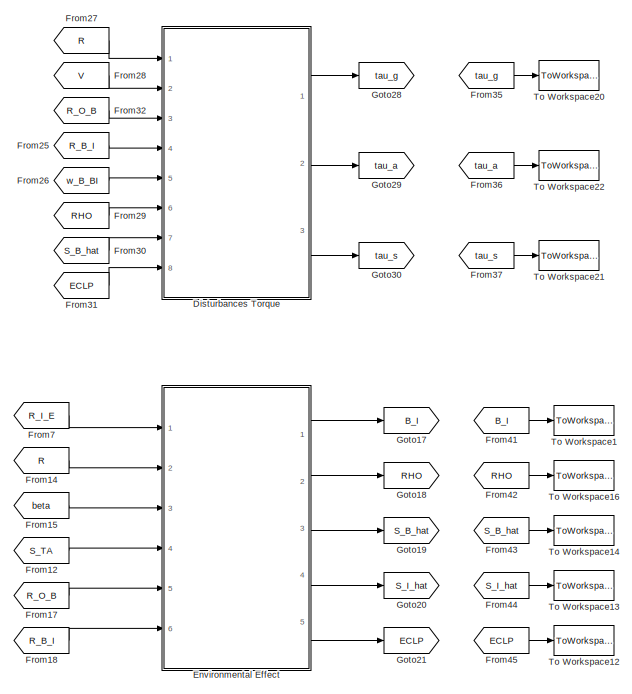
[diagram: root canvas - part 1/2, top right region]
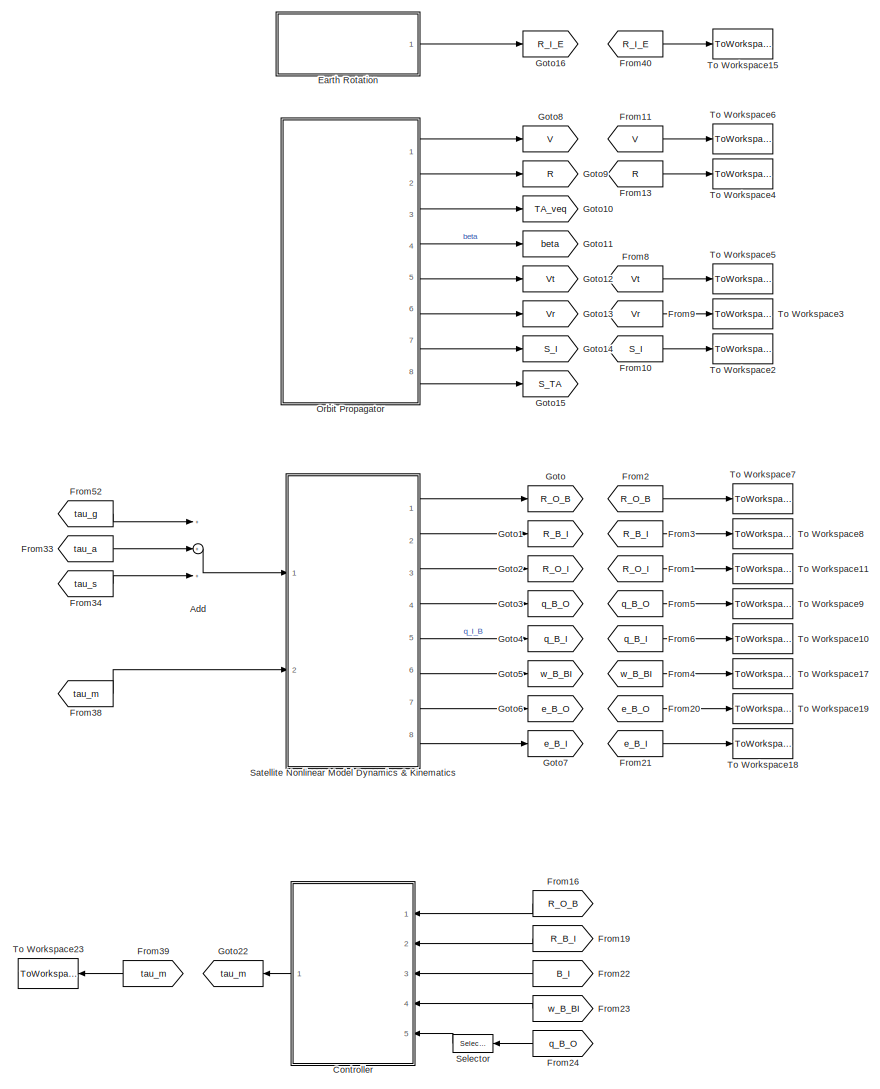
[diagram: root canvas - part 2/2, left side, full height]
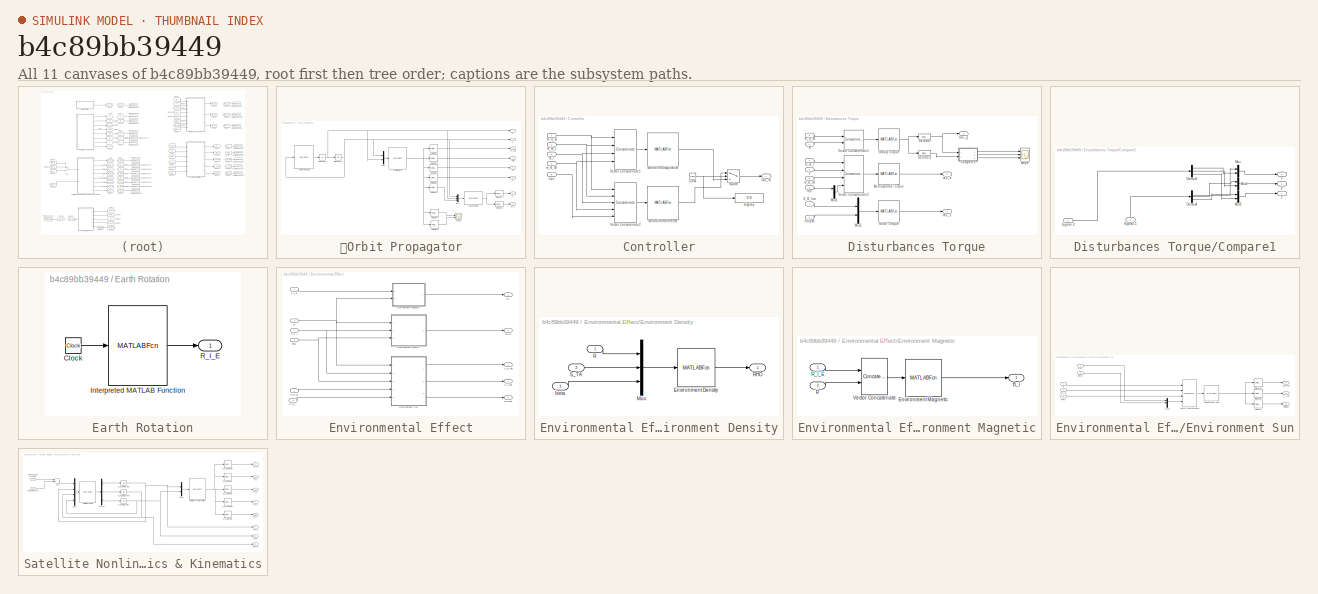
[diagram: thumbnail index - all 11 canvases of the model, root first then tree order]
MODEL slx_b4c89bb39449
KIND model
CONFIG AbsTol = auto
CONFIG EnableMultiTasking = off
CONFIG FixedStep = dt
CONFIG MaxStep = auto
CONFIG MinStep = auto
CONFIG RelTol = 1e-3
CONFIG SampleTimeConstraint = Unconstrained
CONFIG Solver = FixedStepAuto
CONFIG SolverName = FixedStepAuto
CONFIG StartTime = 0.0
CONFIG StopTime = 10.0
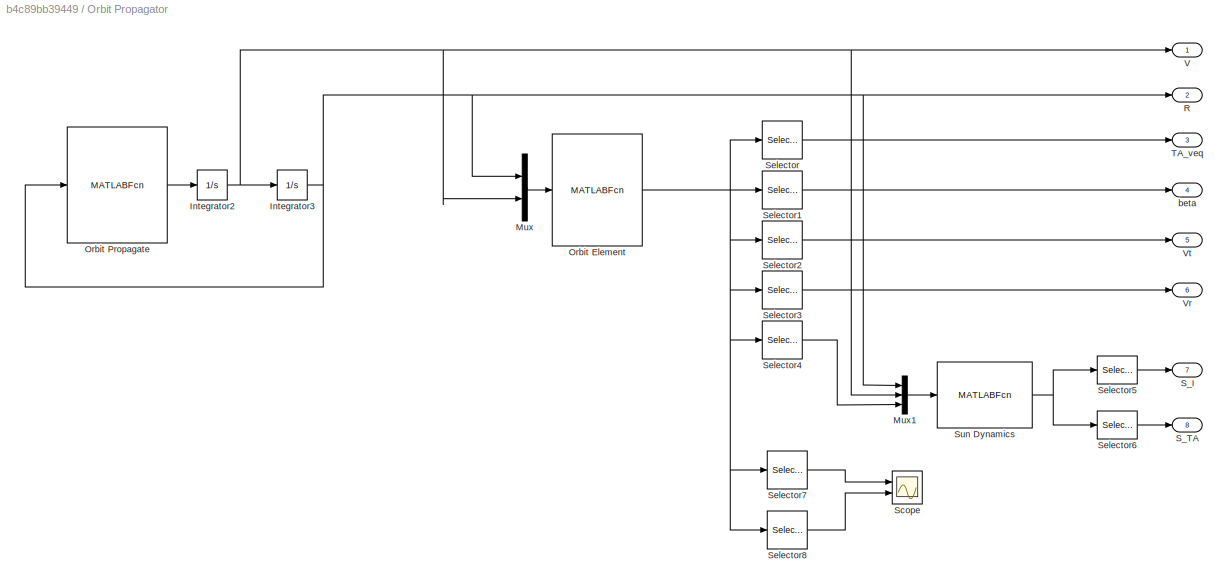
BLOCK [SubSystem] 	Orbit Propagator
  Ports = [0, 8]
  RequestExecContextInheritance = off
  Variant = off
BLOCK [Integrator] 	Orbit Propagator/Integrator2
  InitialCondition = V_0
  Ports = [1, 1]
BLOCK [Integrator] 	Orbit Propagator/Integrator3
  InitialCondition = R_0
  Ports = [1, 1]
BLOCK [Mux] 	Orbit Propagator/Mux
  DisplayOption = bar
  Inputs = 2
  Ports = [2, 1]
BLOCK [Mux] 	Orbit Propagator/Mux1
  DisplayOption = bar
  Inputs = 3
  Ports = [3, 1]
BLOCK [MATLABFcn] 	Orbit Propagator/Orbit Element
  MATLABFcn = orbitElement
  Output1D = off
  OutputDimensions = 11
  Ports = [1, 1]
BLOCK [MATLABFcn] 	Orbit Propagator/Orbit Propagate
  MATLABFcn = orbitPropagate
  Output1D = off
  OutputDimensions = [3,1]
  Ports = [1, 1]
BLOCK [Outport] 	Orbit Propagator/R
  IconDisplay = Port number
  Port = 2
BLOCK [Outport] 	Orbit Propagator/S_I 
  IconDisplay = Port number
  Port = 7
BLOCK [Outport] 	Orbit Propagator/S_TA
  IconDisplay = Port number
  Port = 8
BLOCK [Scope] 	Orbit Propagator/Scope
  NumInputPorts = 2
  Ports = [2]
  ScopeSpecificationString = Simulink.scopes.TimeScopeBlockCfg('CurrentConfiguration', extmgr.ConfigurationSet(extmgr.Configuration('Core','General UI',true),extmgr.Configuration('Core','Source UI',true),extmgr.Configuration('Sources','WiredSimulink',true,'DataLoggingVariableName','ScopeData1'),extmgr.Configuration('Visuals','Time Domain',true,'SerializedDisplays',{struct('MinYLimReal','-1.96348','MaxYLimReal','1.96349','YLab...<+1993ch>
BLOCK [Selector] 	Orbit Propagator/Selector
  IndexOptions = Index vector (dialog)
  Indices = 1
  InputPortWidth = 11
  OutputSizes = 1
  Ports = [1, 1]
BLOCK [Selector] 	Orbit Propagator/Selector1
  IndexOptions = Index vector (dialog)
  Indices = 2
  InputPortWidth = 11
  OutputSizes = 1
  Ports = [1, 1]
BLOCK [Selector] 	Orbit Propagator/Selector2
  IndexOptions = Index vector (dialog)
  Indices = [3:5]
  InputPortWidth = 11
  OutputSizes = 1
  Ports = [1, 1]
BLOCK [Selector] 	Orbit Propagator/Selector3
  IndexOptions = Index vector (dialog)
  Indices = [6:8]
  InputPortWidth = 11
  OutputSizes = 1
  Ports = [1, 1]
BLOCK [Selector] 	Orbit Propagator/Selector4
  IndexOptions = Index vector (dialog)
  Indices = 9
  InputPortWidth = 11
  OutputSizes = 1
  Ports = [1, 1]
BLOCK [Selector] 	Orbit Propagator/Selector5
  IndexOptions = Index vector (dialog),Index vector (dialog)
  Indices = 1:3,1
  InputPortWidth = 4
  NumberOfDimensions = 2
  OutputSizes = 1,1
  Ports = [1, 1]
BLOCK [Selector] 	Orbit Propagator/Selector6
  IndexOptions = Index vector (dialog),Index vector (dialog)
  Indices = 4,1
  InputPortWidth = 4
  NumberOfDimensions = 2
  OutputSizes = 1,1
  Ports = [1, 1]
BLOCK [Selector] 	Orbit Propagator/Selector7
  IndexOptions = Index vector (dialog)
  Indices = 10
  InputPortWidth = 11
  OutputSizes = 1
  Ports = [1, 1]
BLOCK [Selector] 	Orbit Propagator/Selector8
  IndexOptions = Index vector (dialog)
  Indices = 11
  InputPortWidth = 11
  OutputSizes = 1
  Ports = [1, 1]
BLOCK [MATLABFcn] 	Orbit Propagator/Sun Dynamics
  MATLABFcn = sunDynamics
  Output1D = off
  OutputDimensions = [4,1]
  Ports = [1, 1]
BLOCK [Outport] 	Orbit Propagator/TA_veq
  IconDisplay = Port number
  Port = 3
BLOCK [Outport] 	Orbit Propagator/V
  IconDisplay = Port number
BLOCK [Outport] 	Orbit Propagator/Vr
  IconDisplay = Port number
  Port = 6
BLOCK [Outport] 	Orbit Propagator/Vt
  IconDisplay = Port number
  Port = 5
BLOCK [Outport] 	Orbit Propagator/beta
  IconDisplay = Port number
  Port = 4
BLOCK [Sum] Add
  InputSameDT = off
  Inputs = +++
  OutDataTypeStr = Inherit: Inherit via internal rule
  Ports = [3, 1]
  SaturateOnIntegerOverflow = off
BLOCK [SubSystem] Controller
  Ports = [5, 1]
  RequestExecContextInheritance = off
  Variant = off
BLOCK [Inport] Controller/B_I
  IconDisplay = Port number
  Port = 3
BLOCK [Clock] Controller/Clock
BLOCK [Display] Controller/Display
  Decimation = 1
  Ports = [1]
BLOCK [Inport] Controller/R_B_I
  IconDisplay = Port number
  Port = 2
BLOCK [Inport] Controller/R_O_B
  IconDisplay = Port number
BLOCK [Switch] Controller/Switch
  Criteria = u2 > Threshold
  InputSameDT = off
  SaturateOnIntegerOverflow = off
  Threshold = 2*P
BLOCK [Concatenate] Controller/Vector Concatenate1
  ConcatenateDimension = 2
  Mode = Multidimensional array
  NumInputs = 4
  Ports = [4, 1]
BLOCK [Concatenate] Controller/Vector Concatenate2
  ConcatenateDimension = 2
  Mode = Multidimensional array
  NumInputs = 5
  Ports = [5, 1]
BLOCK [MATLABFcn] Controller/controllerDissipitative
  MATLABFcn = controllerDissipative
  Output1D = off
  OutputDimensions = [3,1]
  Ports = [1, 1]
BLOCK [MATLABFcn] Controller/controllerReference
  MATLABFcn = controllerReference
  Output1D = off
  OutputDimensions = [3,1]
  Ports = [1, 1]
BLOCK [Inport] Controller/eps
  IconDisplay = Port number
  Port = 5
BLOCK [Outport] Controller/tau_m
  IconDisplay = Port number
BLOCK [Inport] Controller/w_B_BI
  IconDisplay = Port number
  Port = 4
BLOCK [SubSystem] Disturbances Torque
  Ports = [8, 3]
  RequestExecContextInheritance = off
  Variant = off
BLOCK [MATLABFcn] Disturbances Torque/Aerodynamic Torque
  MATLABFcn = torqueAerodynamic
  Output1D = off
  OutputDimensions = [3,1]
  Ports = [1, 1]
BLOCK [SubSystem] Disturbances Torque/Compare1
  Ports = [2, 3]
  RequestExecContextInheritance = off
  Variant = off
BLOCK [Demux] Disturbances Torque/Compare1/Demux3
  DisplayOption = bar
  Outputs = 3
  Ports = [1, 3]
BLOCK [Demux] Disturbances Torque/Compare1/Demux4
  DisplayOption = bar
  Outputs = 3
  Ports = [1, 3]
BLOCK [Mux] Disturbances Torque/Compare1/Mux
  DisplayOption = bar
  Inputs = 2
  Ports = [2, 1]
BLOCK [Mux] Disturbances Torque/Compare1/Mux1
  DisplayOption = bar
  Inputs = 2
  Ports = [2, 1]
BLOCK [Mux] Disturbances Torque/Compare1/Mux2
  DisplayOption = bar
  Inputs = 2
  Ports = [2, 1]
BLOCK [Inport] Disturbances Torque/Compare1/Signal 1
  IconDisplay = Port number
BLOCK [Inport] Disturbances Torque/Compare1/Signal 2
  IconDisplay = Port number
  Port = 2
BLOCK [Outport] Disturbances Torque/Compare1/x
  IconDisplay = Port number
BLOCK [Outport] Disturbances Torque/Compare1/y
  IconDisplay = Port number
  Port = 2
BLOCK [Outport] Disturbances Torque/Compare1/z
  IconDisplay = Port number
  Port = 3
BLOCK [MATLABFcn] Disturbances Torque/Gravity Torque
  MATLABFcn = torqueGravity
  Output1D = off
  OutputDimensions = [3,2]
  Ports = [1, 1]
BLOCK [Mux] Disturbances Torque/Mux1
  DisplayOption = bar
  Inputs = 3
  Ports = [3, 1]
BLOCK [Mux] Disturbances Torque/Mux2
  DisplayOption = bar
  Inputs = 2
  Ports = [2, 1]
BLOCK [Inport] Disturbances Torque/R
  IconDisplay = Port number
BLOCK [Inport] Disturbances Torque/R_B_I
  IconDisplay = Port number
  Port = 4
BLOCK [Inport] Disturbances Torque/R_O_B
  IconDisplay = Port number
  Port = 3
BLOCK [Inport] Disturbances Torque/S_B_hat
  IconDisplay = Port number
  Port = 7
BLOCK [Selector] Disturbances Torque/Selector
  IndexOptions = Index vector (dialog),Index vector (dialog)
  Indices = [1:3],1
  InputPortWidth = 3
  NumberOfDimensions = 2
  OutputSizes = 1,1
  Ports = [1, 1]
BLOCK [Selector] Disturbances Torque/Selector1
  IndexOptions = Index vector (dialog),Index vector (dialog)
  Indices = [1:3],2
  InputPortWidth = 3
  NumberOfDimensions = 2
  OutputSizes = 1,1
  Ports = [1, 1]
BLOCK [MATLABFcn] Disturbances Torque/Solar Torque
  MATLABFcn = torqueSolar
  Output1D = off
  OutputDimensions = [3,1]
  Ports = [1, 1]
BLOCK [Inport] Disturbances Torque/V
  IconDisplay = Port number
  Port = 2
BLOCK [Concatenate] Disturbances Torque/Vector Concatenate1
  ConcatenateDimension = 2
  Mode = Multidimensional array
  Ports = [2, 1]
BLOCK [Concatenate] Disturbances Torque/Vector Concatenate2
  ConcatenateDimension = 2
  Mode = Multidimensional array
  NumInputs = 4
  Ports = [4, 1]
BLOCK [Inport] Disturbances Torque/eclipse
  IconDisplay = Port number
  Port = 8
BLOCK [Inport] Disturbances Torque/rho
  IconDisplay = Port number
  Port = 6
BLOCK [Scope] Disturbances Torque/scope
  NumInputPorts = 3
  Ports = [3]
  ScopeSpecificationString = Simulink.scopes.TimeScopeBlockCfg('CurrentConfiguration', extmgr.ConfigurationSet(extmgr.Configuration('Core','General UI',true),extmgr.Configuration('Core','Source UI',true),extmgr.Configuration('Sources','WiredSimulink',true,'DataLoggingVariableName','ScopeData1'),extmgr.Configuration('Visuals','Time Domain',true,'SerializedDisplays',{struct('MinYLimReal','-0.000000003','MaxYLimReal','0.00000000...<+3101ch>
BLOCK [Outport] Disturbances Torque/tau_a
  IconDisplay = Port number
  Port = 2
BLOCK [Outport] Disturbances Torque/tau_g
  IconDisplay = Port number
BLOCK [Outport] Disturbances Torque/tau_s
  IconDisplay = Port number
  Port = 3
BLOCK [Inport] Disturbances Torque/w_B_BI
  IconDisplay = Port number
  Port = 5
BLOCK [SubSystem] Earth Rotation
  Ports = [0, 1]
  RequestExecContextInheritance = off
  Variant = off
BLOCK [Clock] Earth Rotation/Clock
BLOCK [MATLABFcn] Earth Rotation/Interpreted MATLAB Function
  MATLABFcn = earthDynamics
  Output1D = off
  OutputDimensions = [3,3]
  Ports = [1, 1]
BLOCK [Outport] Earth Rotation/R_I_E
  IconDisplay = Port number
BLOCK [SubSystem] Environmental Effect
  Ports = [6, 5]
  RequestExecContextInheritance = off
  Variant = off
BLOCK [Outport] Environmental Effect/B_I
  IconDisplay = Port number
BLOCK [Outport] Environmental Effect/Eclipse
  IconDisplay = Port number
  Port = 5
BLOCK [SubSystem] Environmental Effect/Environment Density
  Ports = [3, 1]
  RequestExecContextInheritance = off
  Variant = off
BLOCK [MATLABFcn] Environmental Effect/Environment Density/Environment Density
  MATLABFcn = environmentDensity
  Output1D = off
  OutputDimensions = 1
  Ports = [1, 1]
BLOCK [Mux] Environmental Effect/Environment Density/Mux
  DisplayOption = bar
  Inputs = 3
  Ports = [3, 1]
BLOCK [Inport] Environmental Effect/Environment Density/R
  IconDisplay = Port number
BLOCK [Outport] Environmental Effect/Environment Density/RHO
  IconDisplay = Port number
BLOCK [Inport] Environmental Effect/Environment Density/S_TA
  IconDisplay = Port number
  Port = 2
BLOCK [Inport] Environmental Effect/Environment Density/beta
  IconDisplay = Port number
  Port = 3
BLOCK [SubSystem] Environmental Effect/Environment Magnetic
  Ports = [2, 1]
  RequestExecContextInheritance = off
  Variant = off
BLOCK [Outport] Environmental Effect/Environment Magnetic/B_I
  IconDisplay = Port number
BLOCK [MATLABFcn] Environmental Effect/Environment Magnetic/Environment Magnetic
  MATLABFcn = environmentMagnetic
  Output1D = off
  OutputDimensions = [3,1]
  Ports = [1, 1]
BLOCK [Inport] Environmental Effect/Environment Magnetic/R
  IconDisplay = Port number
  Port = 2
BLOCK [Inport] Environmental Effect/Environment Magnetic/R_I_E
  IconDisplay = Port number
BLOCK [Concatenate] Environmental Effect/Environment Magnetic/Vector Concatenate
  ConcatenateDimension = 2
  Mode = Multidimensional array
  Ports = [2, 1]
BLOCK [SubSystem] Environmental Effect/Environment Sun
  Ports = [5, 3]
  RequestExecContextInheritance = off
  Variant = off
BLOCK [Outport] Environmental Effect/Environment Sun/Eclipse
  IconDisplay = Port number
  Port = 3
BLOCK [MATLABFcn] Environmental Effect/Environment Sun/Environment Sun
  MATLABFcn = environmentSun
  Output1D = off
  OutputDimensions = [3,3]
  Ports = [1, 1]
BLOCK [Mux] Environmental Effect/Environment Sun/Mux1
  DisplayOption = bar
  Inputs = 3
  Ports = [3, 1]
BLOCK [Inport] Environmental Effect/Environment Sun/R
  IconDisplay = Port number
BLOCK [Inport] Environmental Effect/Environment Sun/R_B_I
  IconDisplay = Port number
  Port = 5
BLOCK [Inport] Environmental Effect/Environment Sun/R_O_B
  IconDisplay = Port number
  Port = 4
BLOCK [Outport] Environmental Effect/Environment Sun/S_B_hat
  IconDisplay = Port number
BLOCK [Outport] Environmental Effect/Environment Sun/S_I_hat
  IconDisplay = Port number
  Port = 2
BLOCK [Inport] Environmental Effect/Environment Sun/S_TA
  IconDisplay = Port number
  Port = 2
BLOCK [Selector] Environmental Effect/Environment Sun/Selector
  IndexOptions = Index vector (dialog),Index vector (dialog)
  Indices = 3,3
  InputPortWidth = 3
  NumberOfDimensions = 2
  OutputSizes = 1,1
  Ports = [1, 1]
BLOCK [Selector] Environmental Effect/Environment Sun/Selector1
  IndexOptions = Index vector (dialog),Index vector (dialog)
  Indices = [1:3],1
  InputPortWidth = 3
  NumberOfDimensions = 2
  OutputSizes = 1,1
  Ports = [1, 1]
BLOCK [Selector] Environmental Effect/Environment Sun/Selector2
  IndexOptions = Index vector (dialog),Index vector (dialog)
  Indices = [1:3],2
  InputPortWidth = 3
  NumberOfDimensions = 2
  OutputSizes = 1,1
  Ports = [1, 1]
BLOCK [Concatenate] Environmental Effect/Environment Sun/Vector Concatenate1
  ConcatenateDimension = 2
  Mode = Multidimensional array
  NumInputs = 4
  Ports = [4, 1]
BLOCK [Inport] Environmental Effect/Environment Sun/beta
  IconDisplay = Port number
  Port = 3
BLOCK [Inport] Environmental Effect/R
  IconDisplay = Port number
  Port = 2
BLOCK [Outport] Environmental Effect/RHO
  IconDisplay = Port number
  Port = 2
BLOCK [Inport] Environmental Effect/R_B_I
  IconDisplay = Port number
  Port = 6
BLOCK [Inport] Environmental Effect/R_I_E
  IconDisplay = Port number
BLOCK [Inport] Environmental Effect/R_O_B
  IconDisplay = Port number
  Port = 5
BLOCK [Outport] Environmental Effect/S_B_hat
  IconDisplay = Port number
  Port = 3
BLOCK [Outport] Environmental Effect/S_I_hat
  IconDisplay = Port number
  Port = 4
BLOCK [Inport] Environmental Effect/S_TA
  IconDisplay = Port number
  Port = 4
BLOCK [Inport] Environmental Effect/beta
  IconDisplay = Port number
  Port = 3
BLOCK [From] From1
  GotoTag = R_O_I
BLOCK [From] From10
  GotoTag = S_I
BLOCK [From] From11
  GotoTag = V
BLOCK [From] From12
  GotoTag = S_TA
BLOCK [From] From13
  GotoTag = R
BLOCK [From] From14
  GotoTag = R
BLOCK [From] From15
  GotoTag = beta
BLOCK [From] From16
  GotoTag = R_O_B
BLOCK [From] From17
  GotoTag = R_O_B
BLOCK [From] From18
  GotoTag = R_B_I
BLOCK [From] From19
  GotoTag = R_B_I
BLOCK [From] From2
  GotoTag = R_O_B
BLOCK [From] From20
  GotoTag = e_B_O
BLOCK [From] From21
  GotoTag = e_B_I
BLOCK [From] From22
  GotoTag = B_I
BLOCK [From] From23
  GotoTag = w_B_BI
BLOCK [From] From24
  GotoTag = q_B_O
BLOCK [From] From25
  GotoTag = R_B_I
BLOCK [From] From26
  GotoTag = w_B_BI
BLOCK [From] From27
  GotoTag = R
BLOCK [From] From28
  GotoTag = V
BLOCK [From] From29
  GotoTag = RHO
BLOCK [From] From3
  GotoTag = R_B_I
BLOCK [From] From30
  GotoTag = S_B_hat
BLOCK [From] From31
  GotoTag = ECLP
BLOCK [From] From32
  GotoTag = R_O_B
BLOCK [From] From33
  GotoTag = tau_a
BLOCK [From] From34
  GotoTag = tau_s
BLOCK [From] From35
  GotoTag = tau_g
BLOCK [From] From36
  GotoTag = tau_a
BLOCK [From] From37
  GotoTag = tau_s
BLOCK [From] From38
  GotoTag = tau_m
BLOCK [From] From39
  GotoTag = tau_m
BLOCK [From] From4
  GotoTag = w_B_BI
BLOCK [From] From40
  GotoTag = R_I_E
BLOCK [From] From41
  GotoTag = B_I
BLOCK [From] From42
  GotoTag = RHO
BLOCK [From] From43
  GotoTag = S_B_hat
BLOCK [From] From44
  GotoTag = S_I_hat
BLOCK [From] From45
  GotoTag = ECLP
BLOCK [From] From5
  GotoTag = q_B_O
BLOCK [From] From52
  GotoTag = tau_g
BLOCK [From] From6
  GotoTag = q_B_I
BLOCK [From] From7
  GotoTag = R_I_E
BLOCK [From] From8
  GotoTag = Vt
BLOCK [From] From9
  GotoTag = Vr
BLOCK [Goto] Goto
  GotoTag = R_O_B
BLOCK [Goto] Goto1
  GotoTag = R_B_I
BLOCK [Goto] Goto10
  GotoTag = TA_veq
BLOCK [Goto] Goto11
  GotoTag = beta
BLOCK [Goto] Goto12
  GotoTag = Vt
BLOCK [Goto] Goto13
  GotoTag = Vr
BLOCK [Goto] Goto14
  GotoTag = S_I
BLOCK [Goto] Goto15
  GotoTag = S_TA
BLOCK [Goto] Goto16
  GotoTag = R_I_E
BLOCK [Goto] Goto17
  GotoTag = B_I
BLOCK [Goto] Goto18
  GotoTag = RHO
BLOCK [Goto] Goto19
  GotoTag = S_B_hat
BLOCK [Goto] Goto2
  GotoTag = R_O_I
BLOCK [Goto] Goto20
  GotoTag = S_I_hat
BLOCK [Goto] Goto21
  GotoTag = ECLP
BLOCK [Goto] Goto22
  GotoTag = tau_m
BLOCK [Goto] Goto28
  GotoTag = tau_g
BLOCK [Goto] Goto29
  GotoTag = tau_a
BLOCK [Goto] Goto3
  GotoTag = q_B_O
BLOCK [Goto] Goto30
  GotoTag = tau_s
BLOCK [Goto] Goto4
  GotoTag = q_B_I
BLOCK [Goto] Goto5
  GotoTag = w_B_BI
BLOCK [Goto] Goto6
  GotoTag = e_B_O
BLOCK [Goto] Goto7
  GotoTag = e_B_I
BLOCK [Goto] Goto8
  GotoTag = V
BLOCK [Goto] Goto9
  GotoTag = R
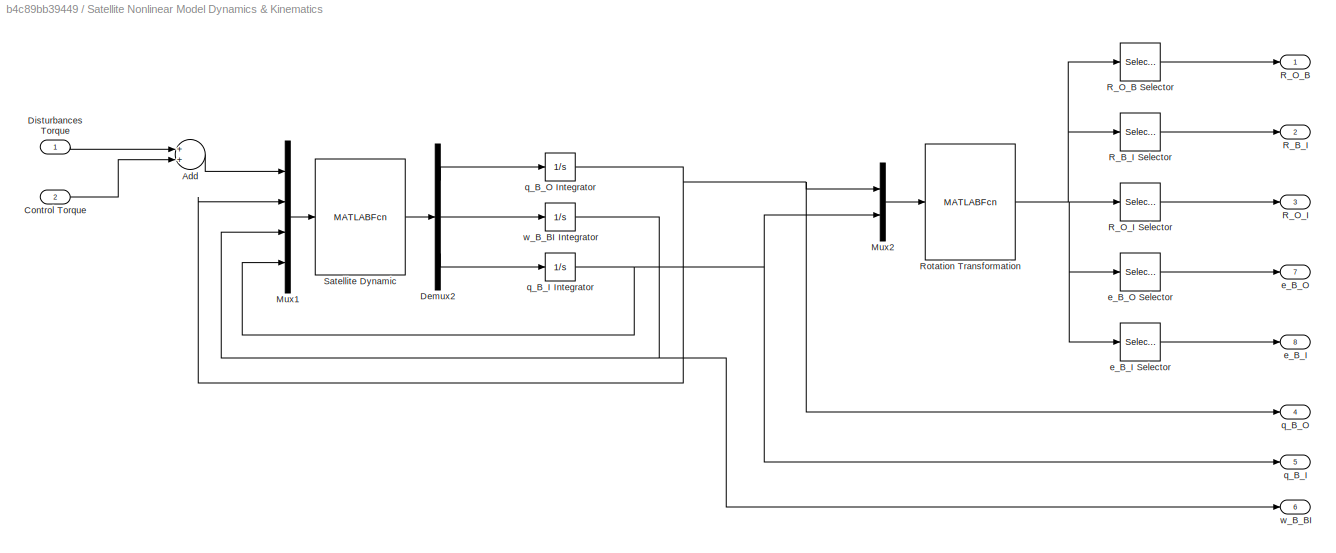
BLOCK [SubSystem] Satellite Nonlinear Model Dynamics & Kinematics
  Ports = [2, 8]
  RequestExecContextInheritance = off
  Variant = off
BLOCK [Integrator] Satellite Nonlinear Model Dynamics & Kinematics/ w_B_BI Integrator
  InitialCondition = w_B_BI_0
  Ports = [1, 1]
BLOCK [Sum] Satellite Nonlinear Model Dynamics & Kinematics/Add
  InputSameDT = off
  OutDataTypeStr = Inherit: Inherit via internal rule
  Ports = [2, 1]
  SaturateOnIntegerOverflow = off
BLOCK [Inport] Satellite Nonlinear Model Dynamics & Kinematics/Control Torque
  IconDisplay = Port number
  Port = 2
BLOCK [Demux] Satellite Nonlinear Model Dynamics & Kinematics/Demux2
  DisplayOption = bar
  Outputs = [4 3 4]
  Ports = [1, 3]
BLOCK [Inport] Satellite Nonlinear Model Dynamics & Kinematics/Disturbances Torque
  IconDisplay = Port number
BLOCK [Mux] Satellite Nonlinear Model Dynamics & Kinematics/Mux1
  DisplayOption = bar
  Inputs = [3 4 3 4]
  Ports = [4, 1]
BLOCK [Mux] Satellite Nonlinear Model Dynamics & Kinematics/Mux2
  DisplayOption = bar
  Inputs = [4 4]
  Ports = [2, 1]
BLOCK [Outport] Satellite Nonlinear Model Dynamics & Kinematics/R_B_I
  IconDisplay = Port number
  Port = 2
BLOCK [Selector] Satellite Nonlinear Model Dynamics & Kinematics/R_B_I Selector
  IndexOptions = Index vector (dialog),Index vector (dialog)
  Indices = [1:3],[4:6]
  InputPortWidth = 3
  NumberOfDimensions = 2
  OutputSizes = 1,1
  Ports = [1, 1]
BLOCK [Outport] Satellite Nonlinear Model Dynamics & Kinematics/R_O_B
  IconDisplay = Port number
BLOCK [Selector] Satellite Nonlinear Model Dynamics & Kinematics/R_O_B Selector
  IndexOptions = Index vector (dialog),Index vector (dialog)
  Indices = [1:3],[1:3]
  InputPortWidth = 3
  NumberOfDimensions = 2
  OutputSizes = 1,1
  Ports = [1, 1]
BLOCK [Outport] Satellite Nonlinear Model Dynamics & Kinematics/R_O_I
  IconDisplay = Port number
  Port = 3
BLOCK [Selector] Satellite Nonlinear Model Dynamics & Kinematics/R_O_I Selector
  IndexOptions = Index vector (dialog),Index vector (dialog)
  Indices = [1:3],[7:9]
  InputPortWidth = 3
  NumberOfDimensions = 2
  OutputSizes = 1,1
  Ports = [1, 1]
BLOCK [MATLABFcn] Satellite Nonlinear Model Dynamics & Kinematics/Rotation Transformation
  MATLABFcn = rotation_quaternion
  Output1D = off
  OutputDimensions = [3,11]
  Ports = [1, 1]
BLOCK [MATLABFcn] Satellite Nonlinear Model Dynamics & Kinematics/Satellite Dynamic
  MATLABFcn = satellite_dynamics
  Output1D = off
  OutputDimensions = [11,1]
  Ports = [1, 1]
BLOCK [Outport] Satellite Nonlinear Model Dynamics & Kinematics/e_B_I
  IconDisplay = Port number
  Port = 8
BLOCK [Selector] Satellite Nonlinear Model Dynamics & Kinematics/e_B_I Selector
  IndexOptions = Index vector (dialog),Index vector (dialog)
  Indices = [1:3],11
  InputPortWidth = 3
  NumberOfDimensions = 2
  OutputSizes = 1,1
  Ports = [1, 1]
BLOCK [Outport] Satellite Nonlinear Model Dynamics & Kinematics/e_B_O
  IconDisplay = Port number
  Port = 7
BLOCK [Selector] Satellite Nonlinear Model Dynamics & Kinematics/e_B_O Selector
  IndexOptions = Index vector (dialog),Index vector (dialog)
  Indices = [1:3],10
  InputPortWidth = 3
  NumberOfDimensions = 2
  OutputSizes = 1,1
  Ports = [1, 1]
BLOCK [Outport] Satellite Nonlinear Model Dynamics & Kinematics/q_B_I
  IconDisplay = Port number
  Port = 5
BLOCK [Integrator] Satellite Nonlinear Model Dynamics & Kinematics/q_B_I Integrator
  InitialCondition = q_B_I_0
  Ports = [1, 1]
BLOCK [Outport] Satellite Nonlinear Model Dynamics & Kinematics/q_B_O
  IconDisplay = Port number
  Port = 4
BLOCK [Integrator] Satellite Nonlinear Model Dynamics & Kinematics/q_B_O Integrator
  InitialCondition = q_B_O_0
  Ports = [1, 1]
BLOCK [Outport] Satellite Nonlinear Model Dynamics & Kinematics/w_B_BI
  IconDisplay = Port number
  Port = 6
BLOCK [Selector] Selector
  IndexOptions = Index vector (dialog),Index vector (dialog)
  Indices = [2:4],1
  InputPortWidth = 3
  NumberOfDimensions = 2
  OutputSizes = 1,1
  Ports = [1, 1]
BLOCK [ToWorkspace] To Workspace1
  FixptAsFi = on
  MaxDataPoints = inf
  Ports = [1]
  SampleTime = -1
  Save2DSignal = 3-D array (concatenate along third dimension)
  VariableName = B_I
BLOCK [ToWorkspace] To Workspace10
  FixptAsFi = on
  MaxDataPoints = inf
  Ports = [1]
  SampleTime = -1
  Save2DSignal = 3-D array (concatenate along third dimension)
  VariableName = q_B_I
BLOCK [ToWorkspace] To Workspace11
  FixptAsFi = on
  MaxDataPoints = inf
  Ports = [1]
  SampleTime = -1
  Save2DSignal = 3-D array (concatenate along third dimension)
  VariableName = R_O_I
BLOCK [ToWorkspace] To Workspace12
  FixptAsFi = on
  MaxDataPoints = inf
  Ports = [1]
  SampleTime = -1
  Save2DSignal = 2-D array (concatenate along first dimension)
  VariableName = ECLIPSE
BLOCK [ToWorkspace] To Workspace13
  FixptAsFi = on
  MaxDataPoints = inf
  Ports = [1]
  SampleTime = -1
  Save2DSignal = 3-D array (concatenate along third dimension)
  VariableName = S_I_hat
BLOCK [ToWorkspace] To Workspace14
  FixptAsFi = on
  MaxDataPoints = inf
  Ports = [1]
  SampleTime = -1
  Save2DSignal = 3-D array (concatenate along third dimension)
  VariableName = S_B_hat
BLOCK [ToWorkspace] To Workspace15
  FixptAsFi = on
  MaxDataPoints = inf
  Ports = [1]
  SampleTime = -1
  Save2DSignal = 3-D array (concatenate along third dimension)
  VariableName = R_I_E
BLOCK [ToWorkspace] To Workspace16
  FixptAsFi = on
  MaxDataPoints = inf
  Ports = [1]
  SampleTime = -1
  Save2DSignal = 2-D array (concatenate along first dimension)
  VariableName = RHO
BLOCK [ToWorkspace] To Workspace17
  FixptAsFi = on
  MaxDataPoints = inf
  Ports = [1]
  SampleTime = -1
  Save2DSignal = 3-D array (concatenate along third dimension)
  VariableName = w_B_BI
BLOCK [ToWorkspace] To Workspace18
  FixptAsFi = on
  MaxDataPoints = inf
  Ports = [1]
  SampleTime = -1
  Save2DSignal = 3-D array (concatenate along third dimension)
  VariableName = e_B_I
BLOCK [ToWorkspace] To Workspace19
  FixptAsFi = on
  MaxDataPoints = inf
  Ports = [1]
  SampleTime = -1
  Save2DSignal = 3-D array (concatenate along third dimension)
  VariableName = e_B_O
BLOCK [ToWorkspace] To Workspace2
  FixptAsFi = on
  MaxDataPoints = inf
  Ports = [1]
  SampleTime = -1
  Save2DSignal = 3-D array (concatenate along third dimension)
  VariableName = S_I
BLOCK [ToWorkspace] To Workspace20
  FixptAsFi = on
  MaxDataPoints = inf
  Ports = [1]
  SampleTime = -1
  Save2DSignal = 3-D array (concatenate along third dimension)
  VariableName = tau_g
BLOCK [ToWorkspace] To Workspace21
  FixptAsFi = on
  MaxDataPoints = inf
  Ports = [1]
  SampleTime = -1
  Save2DSignal = 3-D array (concatenate along third dimension)
  VariableName = tau_s
BLOCK [ToWorkspace] To Workspace22
  FixptAsFi = on
  MaxDataPoints = inf
  Ports = [1]
  SampleTime = -1
  Save2DSignal = 2-D array (concatenate along first dimension)
  VariableName = tau_a
BLOCK [ToWorkspace] To Workspace23
  FixptAsFi = on
  MaxDataPoints = inf
  Ports = [1]
  SampleTime = -1
  Save2DSignal = 3-D array (concatenate along third dimension)
  VariableName = tau_m
BLOCK [ToWorkspace] To Workspace3
  FixptAsFi = on
  MaxDataPoints = inf
  Ports = [1]
  SampleTime = -1
  Save2DSignal = 3-D array (concatenate along third dimension)
  VariableName = Vr
BLOCK [ToWorkspace] To Workspace4
  FixptAsFi = on
  MaxDataPoints = inf
  Ports = [1]
  SampleTime = -1
  Save2DSignal = 3-D array (concatenate along third dimension)
  VariableName = R
BLOCK [ToWorkspace] To Workspace5
  FixptAsFi = on
  MaxDataPoints = inf
  Ports = [1]
  SampleTime = -1
  Save2DSignal = 3-D array (concatenate along third dimension)
  VariableName = Vt
BLOCK [ToWorkspace] To Workspace6
  FixptAsFi = on
  MaxDataPoints = inf
  Ports = [1]
  SampleTime = -1
  Save2DSignal = 3-D array (concatenate along third dimension)
  VariableName = V
BLOCK [ToWorkspace] To Workspace7
  FixptAsFi = on
  MaxDataPoints = inf
  Ports = [1]
  SampleTime = -1
  Save2DSignal = 3-D array (concatenate along third dimension)
  VariableName = R_O_B
BLOCK [ToWorkspace] To Workspace8
  FixptAsFi = on
  MaxDataPoints = inf
  Ports = [1]
  SampleTime = -1
  Save2DSignal = 3-D array (concatenate along third dimension)
  VariableName = R_B_I
BLOCK [ToWorkspace] To Workspace9
  FixptAsFi = on
  MaxDataPoints = inf
  Ports = [1]
  SampleTime = -1
  Save2DSignal = 3-D array (concatenate along third dimension)
  VariableName = q_B_O
NET 	Orbit Propagator/Integrator2:1 -> 	Orbit Propagator/Integrator3:1, 	Orbit Propagator/Mux1:2, 	Orbit Propagator/Mux:2, 	Orbit Propagator/V:1
NET 	Orbit Propagator/Integrator3:1 -> 	Orbit Propagator/Mux1:1, 	Orbit Propagator/Mux:1, 	Orbit Propagator/Orbit Propagate:1, 	Orbit Propagator/R:1
LINE 	Orbit Propagator/Mux1:1 -> 	Orbit Propagator/Sun Dynamics:1
LINE 	Orbit Propagator/Mux:1 -> 	Orbit Propagator/Orbit Element:1
NET 	Orbit Propagator/Orbit Element:1 -> 	Orbit Propagator/Selector1:1, 	Orbit Propagator/Selector2:1, 	Orbit Propagator/Selector3:1, 	Orbit Propagator/Selector4:1, 	Orbit Propagator/Selector7:1, 	Orbit Propagator/Selector8:1, 	Orbit Propagator/Selector:1
LINE 	Orbit Propagator/Orbit Propagate:1 -> 	Orbit Propagator/Integrator2:1
LINE 	Orbit Propagator/Selector1:1 -> 	Orbit Propagator/beta:1
LINE 	Orbit Propagator/Selector2:1 -> 	Orbit Propagator/Vt:1
LINE 	Orbit Propagator/Selector3:1 -> 	Orbit Propagator/Vr:1
LINE 	Orbit Propagator/Selector4:1 -> 	Orbit Propagator/Mux1:3
LINE 	Orbit Propagator/Selector5:1 -> 	Orbit Propagator/S_I :1
LINE 	Orbit Propagator/Selector6:1 -> 	Orbit Propagator/S_TA:1
LINE 	Orbit Propagator/Selector7:1 -> 	Orbit Propagator/Scope:1
LINE 	Orbit Propagator/Selector8:1 -> 	Orbit Propagator/Scope:2
LINE 	Orbit Propagator/Selector:1 -> 	Orbit Propagator/TA_veq:1
NET 	Orbit Propagator/Sun Dynamics:1 -> 	Orbit Propagator/Selector5:1, 	Orbit Propagator/Selector6:1
LINE 	Orbit Propagator:1 -> Goto8:1
LINE 	Orbit Propagator:2 -> Goto9:1
LINE 	Orbit Propagator:3 -> Goto10:1
LINE 	Orbit Propagator:4 -> Goto11:1
LINE 	Orbit Propagator:5 -> Goto12:1
LINE 	Orbit Propagator:6 -> Goto13:1
LINE 	Orbit Propagator:7 -> Goto14:1
LINE 	Orbit Propagator:8 -> Goto15:1
LINE Add:1 -> Satellite Nonlinear Model Dynamics & Kinematics:1
NET Controller/B_I:1 -> Controller/Vector Concatenate1:3, Controller/Vector Concatenate2:3
NET Controller/Clock:1 -> Controller/Display:1, Controller/Switch:2
NET Controller/R_B_I:1 -> Controller/Vector Concatenate1:2, Controller/Vector Concatenate2:2
NET Controller/R_O_B:1 -> Controller/Vector Concatenate1:1, Controller/Vector Concatenate2:1
LINE Controller/Switch:1 -> Controller/tau_m:1
LINE Controller/Vector Concatenate1:1 -> Controller/controllerDissipitative:1
LINE Controller/Vector Concatenate2:1 -> Controller/controllerReference:1
LINE Controller/controllerDissipitative:1 -> Controller/Switch:3
LINE Controller/controllerReference:1 -> Controller/Switch:1
LINE Controller/eps:1 -> Controller/Vector Concatenate2:5
NET Controller/w_B_BI:1 -> Controller/Vector Concatenate1:4, Controller/Vector Concatenate2:4
LINE Controller:1 -> Goto22:1
LINE Disturbances Torque/Aerodynamic Torque:1 -> Disturbances Torque/tau_a:1
LINE Disturbances Torque/Compare1/Demux3:1 -> Disturbances Torque/Compare1/Mux:2
LINE Disturbances Torque/Compare1/Demux3:2 -> Disturbances Torque/Compare1/Mux1:2
LINE Disturbances Torque/Compare1/Demux3:3 -> Disturbances Torque/Compare1/Mux2:2
LINE Disturbances Torque/Compare1/Demux4:1 -> Disturbances Torque/Compare1/Mux:1
LINE Disturbances Torque/Compare1/Demux4:2 -> Disturbances Torque/Compare1/Mux1:1
LINE Disturbances Torque/Compare1/Demux4:3 -> Disturbances Torque/Compare1/Mux2:1
LINE Disturbances Torque/Compare1/Mux1:1 -> Disturbances Torque/Compare1/y:1
LINE Disturbances Torque/Compare1/Mux2:1 -> Disturbances Torque/Compare1/z:1
LINE Disturbances Torque/Compare1/Mux:1 -> Disturbances Torque/Compare1/x:1
LINE Disturbances Torque/Compare1/Signal 1:1 -> Disturbances Torque/Compare1/Demux4:1
LINE Disturbances Torque/Compare1/Signal 2:1 -> Disturbances Torque/Compare1/Demux3:1
LINE Disturbances Torque/Compare1:1 -> Disturbances Torque/scope:1
LINE Disturbances Torque/Compare1:2 -> Disturbances Torque/scope:2
LINE Disturbances Torque/Compare1:3 -> Disturbances Torque/scope:3
NET Disturbances Torque/Gravity Torque:1 -> Disturbances Torque/Selector1:1, Disturbances Torque/Selector:1
LINE Disturbances Torque/Mux1:1 -> Disturbances Torque/Vector Concatenate2:4
LINE Disturbances Torque/Mux2:1 -> Disturbances Torque/Solar Torque:1
LINE Disturbances Torque/R:1 -> Disturbances Torque/Vector Concatenate1:2
LINE Disturbances Torque/R_B_I:1 -> Disturbances Torque/Vector Concatenate2:1
LINE Disturbances Torque/R_O_B:1 -> Disturbances Torque/Vector Concatenate1:1
LINE Disturbances Torque/S_B_hat:1 -> Disturbances Torque/Mux2:1
LINE Disturbances Torque/Selector1:1 -> Disturbances Torque/Compare1:2
NET Disturbances Torque/Selector:1 -> Disturbances Torque/Compare1:1, Disturbances Torque/tau_g:1
LINE Disturbances Torque/Solar Torque:1 -> Disturbances Torque/tau_s:1
LINE Disturbances Torque/V:1 -> Disturbances Torque/Vector Concatenate2:2
LINE Disturbances Torque/Vector Concatenate1:1 -> Disturbances Torque/Gravity Torque:1
LINE Disturbances Torque/Vector Concatenate2:1 -> Disturbances Torque/Aerodynamic Torque:1
LINE Disturbances Torque/eclipse:1 -> Disturbances Torque/Mux2:2
LINE Disturbances Torque/rho:1 -> Disturbances Torque/Mux1:1
LINE Disturbances Torque/w_B_BI:1 -> Disturbances Torque/Vector Concatenate2:3
LINE Disturbances Torque:1 -> Goto28:1
LINE Disturbances Torque:2 -> Goto29:1
LINE Disturbances Torque:3 -> Goto30:1
LINE Earth Rotation/Clock:1 -> Earth Rotation/Interpreted MATLAB Function:1
LINE Earth Rotation/Interpreted MATLAB Function:1 -> Earth Rotation/R_I_E:1
LINE Earth Rotation:1 -> Goto16:1
LINE Environmental Effect/Environment Density/Environment Density:1 -> Environmental Effect/Environment Density/RHO:1
LINE Environmental Effect/Environment Density/Mux:1 -> Environmental Effect/Environment Density/Environment Density:1
LINE Environmental Effect/Environment Density/R:1 -> Environmental Effect/Environment Density/Mux:1
LINE Environmental Effect/Environment Density/S_TA:1 -> Environmental Effect/Environment Density/Mux:2
LINE Environmental Effect/Environment Density/beta:1 -> Environmental Effect/Environment Density/Mux:3
LINE Environmental Effect/Environment Density:1 -> Environmental Effect/RHO:1
LINE Environmental Effect/Environment Magnetic/Environment Magnetic:1 -> Environmental Effect/Environment Magnetic/B_I:1
LINE Environmental Effect/Environment Magnetic/R:1 -> Environmental Effect/Environment Magnetic/Vector Concatenate:2
LINE Environmental Effect/Environment Magnetic/R_I_E:1 -> Environmental Effect/Environment Magnetic/Vector Concatenate:1
LINE Environmental Effect/Environment Magnetic/Vector Concatenate:1 -> Environmental Effect/Environment Magnetic/Environment Magnetic:1
LINE Environmental Effect/Environment Magnetic:1 -> Environmental Effect/B_I:1
NET Environmental Effect/Environment Sun/Environment Sun:1 -> Environmental Effect/Environment Sun/Selector1:1, Environmental Effect/Environment Sun/Selector2:1, Environmental Effect/Environment Sun/Selector:1
LINE Environmental Effect/Environment Sun/Mux1:1 -> Environmental Effect/Environment Sun/Vector Concatenate1:4
LINE Environmental Effect/Environment Sun/R:1 -> Environmental Effect/Environment Sun/Vector Concatenate1:1
LINE Environmental Effect/Environment Sun/R_B_I:1 -> Environmental Effect/Environment Sun/Vector Concatenate1:3
LINE Environmental Effect/Environment Sun/R_O_B:1 -> Environmental Effect/Environment Sun/Vector Concatenate1:2
LINE Environmental Effect/Environment Sun/S_TA:1 -> Environmental Effect/Environment Sun/Mux1:1
LINE Environmental Effect/Environment Sun/Selector1:1 -> Environmental Effect/Environment Sun/S_B_hat:1
LINE Environmental Effect/Environment Sun/Selector2:1 -> Environmental Effect/Environment Sun/S_I_hat:1
LINE Environmental Effect/Environment Sun/Selector:1 -> Environmental Effect/Environment Sun/Eclipse:1
LINE Environmental Effect/Environment Sun/Vector Concatenate1:1 -> Environmental Effect/Environment Sun/Environment Sun:1
LINE Environmental Effect/Environment Sun/beta:1 -> Environmental Effect/Environment Sun/Mux1:2
LINE Environmental Effect/Environment Sun:1 -> Environmental Effect/S_B_hat:1
LINE Environmental Effect/Environment Sun:2 -> Environmental Effect/S_I_hat:1
LINE Environmental Effect/Environment Sun:3 -> Environmental Effect/Eclipse:1
NET Environmental Effect/R:1 -> Environmental Effect/Environment Density:1, Environmental Effect/Environment Magnetic:2, Environmental Effect/Environment Sun:1
LINE Environmental Effect/R_B_I:1 -> Environmental Effect/Environment Sun:5
LINE Environmental Effect/R_I_E:1 -> Environmental Effect/Environment Magnetic:1
LINE Environmental Effect/R_O_B:1 -> Environmental Effect/Environment Sun:4
NET Environmental Effect/S_TA:1 -> Environmental Effect/Environment Density:2, Environmental Effect/Environment Sun:2
NET Environmental Effect/beta:1 -> Environmental Effect/Environment Density:3, Environmental Effect/Environment Sun:3
LINE Environmental Effect:1 -> Goto17:1
LINE Environmental Effect:2 -> Goto18:1
LINE Environmental Effect:3 -> Goto19:1
LINE Environmental Effect:4 -> Goto20:1
LINE Environmental Effect:5 -> Goto21:1
LINE From10:1 -> To Workspace2:1
LINE From11:1 -> To Workspace6:1
LINE From12:1 -> Environmental Effect:4
LINE From13:1 -> To Workspace4:1
LINE From14:1 -> Environmental Effect:2
LINE From15:1 -> Environmental Effect:3
LINE From16:1 -> Controller:1
LINE From17:1 -> Environmental Effect:5
LINE From18:1 -> Environmental Effect:6
LINE From19:1 -> Controller:2
LINE From1:1 -> To Workspace11:1
LINE From20:1 -> To Workspace19:1
LINE From21:1 -> To Workspace18:1
LINE From22:1 -> Controller:3
LINE From23:1 -> Controller:4
LINE From24:1 -> Selector:1
LINE From25:1 -> Disturbances Torque:4
LINE From26:1 -> Disturbances Torque:5
LINE From27:1 -> Disturbances Torque:1
LINE From28:1 -> Disturbances Torque:2
LINE From29:1 -> Disturbances Torque:6
LINE From2:1 -> To Workspace7:1
LINE From30:1 -> Disturbances Torque:7
LINE From31:1 -> Disturbances Torque:8
LINE From32:1 -> Disturbances Torque:3
LINE From33:1 -> Add:2
LINE From34:1 -> Add:3
LINE From35:1 -> To Workspace20:1
LINE From36:1 -> To Workspace22:1
LINE From37:1 -> To Workspace21:1
LINE From38:1 -> Satellite Nonlinear Model Dynamics & Kinematics:2
LINE From39:1 -> To Workspace23:1
LINE From3:1 -> To Workspace8:1
LINE From40:1 -> To Workspace15:1
LINE From41:1 -> To Workspace1:1
LINE From42:1 -> To Workspace16:1
LINE From43:1 -> To Workspace14:1
LINE From44:1 -> To Workspace13:1
LINE From45:1 -> To Workspace12:1
LINE From4:1 -> To Workspace17:1
LINE From52:1 -> Add:1
LINE From5:1 -> To Workspace9:1
LINE From6:1 -> To Workspace10:1
LINE From7:1 -> Environmental Effect:1
LINE From8:1 -> To Workspace5:1
LINE From9:1 -> To Workspace3:1
NET Satellite Nonlinear Model Dynamics & Kinematics/ w_B_BI Integrator:1 -> Satellite Nonlinear Model Dynamics & Kinematics/Mux1:3, Satellite Nonlinear Model Dynamics & Kinematics/w_B_BI:1
LINE Satellite Nonlinear Model Dynamics & Kinematics/Add:1 -> Satellite Nonlinear Model Dynamics & Kinematics/Mux1:1
LINE Satellite Nonlinear Model Dynamics & Kinematics/Control Torque:1 -> Satellite Nonlinear Model Dynamics & Kinematics/Add:2
LINE Satellite Nonlinear Model Dynamics & Kinematics/Demux2:1 -> Satellite Nonlinear Model Dynamics & Kinematics/q_B_O Integrator:1
LINE Satellite Nonlinear Model Dynamics & Kinematics/Demux2:2 -> Satellite Nonlinear Model Dynamics & Kinematics/ w_B_BI Integrator:1
LINE Satellite Nonlinear Model Dynamics & Kinematics/Demux2:3 -> Satellite Nonlinear Model Dynamics & Kinematics/q_B_I Integrator:1
LINE Satellite Nonlinear Model Dynamics & Kinematics/Disturbances Torque:1 -> Satellite Nonlinear Model Dynamics & Kinematics/Add:1
LINE Satellite Nonlinear Model Dynamics & Kinematics/Mux1:1 -> Satellite Nonlinear Model Dynamics & Kinematics/Satellite Dynamic:1
LINE Satellite Nonlinear Model Dynamics & Kinematics/Mux2:1 -> Satellite Nonlinear Model Dynamics & Kinematics/Rotation Transformation:1
LINE Satellite Nonlinear Model Dynamics & Kinematics/R_B_I Selector:1 -> Satellite Nonlinear Model Dynamics & Kinematics/R_B_I:1
LINE Satellite Nonlinear Model Dynamics & Kinematics/R_O_B Selector:1 -> Satellite Nonlinear Model Dynamics & Kinematics/R_O_B:1
LINE Satellite Nonlinear Model Dynamics & Kinematics/R_O_I Selector:1 -> Satellite Nonlinear Model Dynamics & Kinematics/R_O_I:1
NET Satellite Nonlinear Model Dynamics & Kinematics/Rotation Transformation:1 -> Satellite Nonlinear Model Dynamics & Kinematics/R_B_I Selector:1, Satellite Nonlinear Model Dynamics & Kinematics/R_O_B Selector:1, Satellite Nonlinear Model Dynamics & Kinematics/R_O_I Selector:1, Satellite Nonlinear Model Dynamics & Kinematics/e_B_I Selector:1, Satellite Nonlinear Model Dynamics & Kinematics/e_B_O Selector:1
LINE Satellite Nonlinear Model Dynamics & Kinematics/Satellite Dynamic:1 -> Satellite Nonlinear Model Dynamics & Kinematics/Demux2:1
LINE Satellite Nonlinear Model Dynamics & Kinematics/e_B_I Selector:1 -> Satellite Nonlinear Model Dynamics & Kinematics/e_B_I:1
LINE Satellite Nonlinear Model Dynamics & Kinematics/e_B_O Selector:1 -> Satellite Nonlinear Model Dynamics & Kinematics/e_B_O:1
NET Satellite Nonlinear Model Dynamics & Kinematics/q_B_I Integrator:1 -> Satellite Nonlinear Model Dynamics & Kinematics/Mux1:4, Satellite Nonlinear Model Dynamics & Kinematics/Mux2:2, Satellite Nonlinear Model Dynamics & Kinematics/q_B_I:1
NET Satellite Nonlinear Model Dynamics & Kinematics/q_B_O Integrator:1 -> Satellite Nonlinear Model Dynamics & Kinematics/Mux1:2, Satellite Nonlinear Model Dynamics & Kinematics/Mux2:1, Satellite Nonlinear Model Dynamics & Kinematics/q_B_O:1
LINE Satellite Nonlinear Model Dynamics & Kinematics:1 -> Goto:1
LINE Satellite Nonlinear Model Dynamics & Kinematics:2 -> Goto1:1
LINE Satellite Nonlinear Model Dynamics & Kinematics:3 -> Goto2:1
LINE Satellite Nonlinear Model Dynamics & Kinematics:4 -> Goto3:1
LINE Satellite Nonlinear Model Dynamics & Kinematics:5 -> Goto4:1
LINE Satellite Nonlinear Model Dynamics & Kinematics:6 -> Goto5:1
LINE Satellite Nonlinear Model Dynamics & Kinematics:7 -> Goto6:1
LINE Satellite Nonlinear Model Dynamics & Kinematics:8 -> Goto7:1
LINE Selector:1 -> Controller:5
note: NET lines group one-source signal fan-out (src -> all destinations, sorted); 1:1 wires keep LINE
